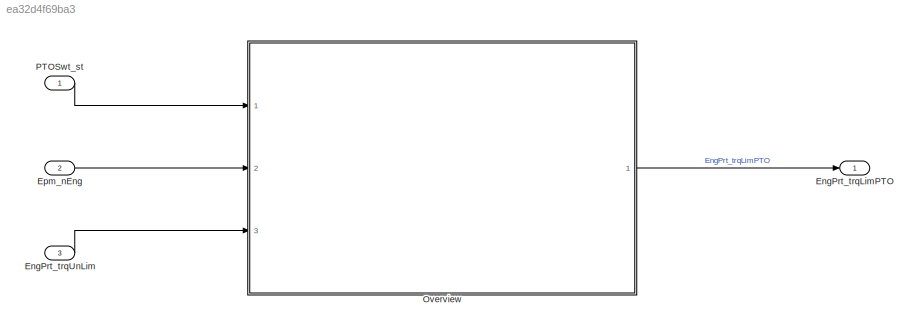
MODEL slx_ea32d4f69ba3
KIND model
CONFIG AbsTol = auto
CONFIG EnableMultiTasking = off
CONFIG FixedStep = 0.001
CONFIG MaxStep = auto
CONFIG MinStep = auto
CONFIG RelTol = 1e-3
CONFIG SampleTimeConstraint = Unconstrained
CONFIG Solver = FixedStepDiscrete
CONFIG SolverName = FixedStepDiscrete
CONFIG StartTime = 0.0
CONFIG StopTime = Inf
BLOCK [Outport] EngPrt_trqLimPTO
  IconDisplay = Port number
BLOCK [Inport] EngPrt_trqUnLim
  Description = Enabled torque from the maximum power manager
  IconDisplay = Port number
  OutDataTypeStr = Torq
  OutMax = 3276.7
  OutMin = -3276.8
  Port = 3
  PortDimensions = [1 1]
  Unit = Nm
BLOCK [Inport] Epm_nEng
  Description = Engine speed
  IconDisplay = Port number
  OutDataTypeStr = ERPM
  OutMax = 6000
  OutMin = 0
  Port = 2
  PortDimensions = [1 1]
  Unit = rpm
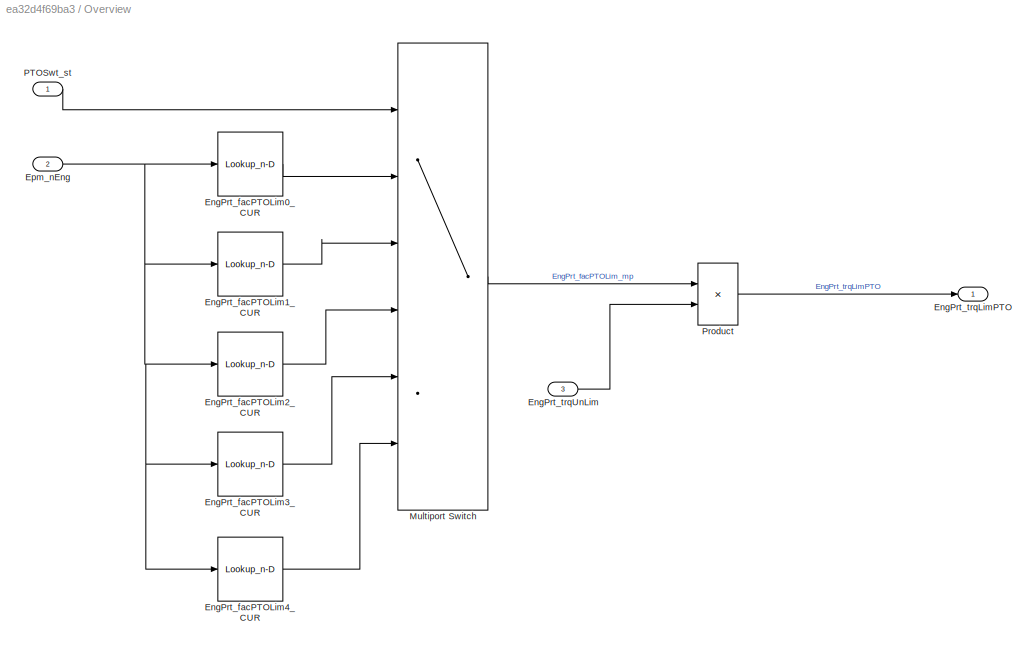
BLOCK [SubSystem] Overview
  Ports = [3, 1]
  RequestExecContextInheritance = off
BLOCK [Lookup_n-D] Overview/EngPrt_facPTOLim0_CUR
  BreakpointsForDimension1 = EngPrt_facPTOLim0_CURX
  BreakpointsForDimension1DataTypeStr = Inherit: Inherit from 'Breakpoint data'
  ExtrapMethod = Clip
  IndexSearchMethod = Linear search
  InputSameDT = off
  InternalRulePriority = Speed
  NumberOfTableDimensions = 1
  OutDataTypeStr = Inherit: Inherit from 'Table data'
  Ports = [1, 1]
  RndMeth = Simplest
  SaturateOnIntegerOverflow = on
  Table = EngPrt_facPTOLim0_CUR
  TableDataTypeStr = Inherit: Inherit from 'Table data'
BLOCK [Lookup_n-D] Overview/EngPrt_facPTOLim1_CUR
  BreakpointsForDimension1 = EngPrt_facPTOLim1_CURX
  BreakpointsForDimension1DataTypeStr = Inherit: Inherit from 'Breakpoint data'
  ExtrapMethod = Clip
  IndexSearchMethod = Linear search
  InputSameDT = off
  InternalRulePriority = Speed
  NumberOfTableDimensions = 1
  OutDataTypeStr = Inherit: Inherit from 'Table data'
  Ports = [1, 1]
  RndMeth = Simplest
  SaturateOnIntegerOverflow = on
  Table = EngPrt_facPTOLim1_CUR
  TableDataTypeStr = Inherit: Inherit from 'Table data'
BLOCK [Lookup_n-D] Overview/EngPrt_facPTOLim2_CUR
  BreakpointsForDimension1 = EngPrt_facPTOLim2_CURX
  ExtrapMethod = Clip
  IndexSearchMethod = Linear search
  InputSameDT = off
  InternalRulePriority = Speed
  NumberOfTableDimensions = 1
  OutDataTypeStr = Inherit: Inherit from 'Table data'
  Ports = [1, 1]
  RndMeth = Simplest
  SaturateOnIntegerOverflow = on
  Table = EngPrt_facPTOLim2_CUR
BLOCK [Lookup_n-D] Overview/EngPrt_facPTOLim3_CUR
  BreakpointsForDimension1 = EngPrt_facPTOLim3_CURX
  BreakpointsForDimension1DataTypeStr = Inherit: Inherit from 'Breakpoint data'
  ExtrapMethod = Clip
  IndexSearchMethod = Linear search
  InputSameDT = off
  InternalRulePriority = Speed
  NumberOfTableDimensions = 1
  OutDataTypeStr = Inherit: Inherit from 'Table data'
  Ports = [1, 1]
  RndMeth = Simplest
  SaturateOnIntegerOverflow = on
  Table = EngPrt_facPTOLim3_CUR
  TableDataTypeStr = Inherit: Inherit from 'Table data'
BLOCK [Lookup_n-D] Overview/EngPrt_facPTOLim4_CUR
  BreakpointsForDimension1 = EngPrt_facPTOLim4_CURX
  BreakpointsForDimension1DataTypeStr = Inherit: Inherit from 'Breakpoint data'
  ExtrapMethod = Clip
  IndexSearchMethod = Linear search
  InputSameDT = off
  InternalRulePriority = Speed
  NumberOfTableDimensions = 1
  OutDataTypeStr = Inherit: Inherit from 'Table data'
  Ports = [1, 1]
  RndMeth = Simplest
  SaturateOnIntegerOverflow = on
  Table = EngPrt_facPTOLim4_CUR
  TableDataTypeStr = Inherit: Inherit from 'Table data'
BLOCK [Outport] Overview/EngPrt_trqLimPTO
  IconDisplay = Port number
  Tag = Nm
BLOCK [Inport] Overview/EngPrt_trqUnLim
  IconDisplay = Port number
  Port = 3
  Tag = Nm
BLOCK [Inport] Overview/Epm_nEng
  IconDisplay = Port number
  Port = 2
  Tag = rpm
BLOCK [MultiPortSwitch] Overview/Multiport Switch
  DataPortOrder = Zero-based contiguous
  InputSameDT = off
  Inputs = 5
  OutDataTypeStr = Inherit: Inherit via back propagation
  Ports = [6, 1]
  SaturateOnIntegerOverflow = off
  zeroidx = on
BLOCK [Inport] Overview/PTOSwt_st
  IconDisplay = Port number
BLOCK [Product] Overview/Product
  InputSameDT = off
  OutDataTypeStr = Inherit: Inherit via back propagation
  Ports = [2, 1]
  RndMeth = Floor
  SaturateOnIntegerOverflow = off
BLOCK [Inport] PTOSwt_st
  Description = Power Take-off switch current state for a specific input voltage
  IconDisplay = Port number
  OutDataTypeStr = State
  OutMax = 255
  OutMin = 0
  PortDimensions = [1 1]
LINE EngPrt_trqUnLim:1 -> Overview:3
LINE Epm_nEng:1 -> Overview:2
LINE Overview/EngPrt_facPTOLim0_CUR:1 -> Overview/Multiport Switch:2
LINE Overview/EngPrt_facPTOLim1_CUR:1 -> Overview/Multiport Switch:3
LINE Overview/EngPrt_facPTOLim2_CUR:1 -> Overview/Multiport Switch:4
LINE Overview/EngPrt_facPTOLim3_CUR:1 -> Overview/Multiport Switch:5
LINE Overview/EngPrt_facPTOLim4_CUR:1 -> Overview/Multiport Switch:6
LINE Overview/EngPrt_trqUnLim:1 -> Overview/Product:2
NET Overview/Epm_nEng:1 -> Overview/EngPrt_facPTOLim0_CUR:1, Overview/EngPrt_facPTOLim1_CUR:1, Overview/EngPrt_facPTOLim2_CUR:1, Overview/EngPrt_facPTOLim3_CUR:1, Overview/EngPrt_facPTOLim4_CUR:1
LINE Overview/Multiport Switch:1 -> Overview/Product:1
LINE Overview/PTOSwt_st:1 -> Overview/Multiport Switch:1
LINE Overview/Product:1 -> Overview/EngPrt_trqLimPTO:1
LINE Overview:1 -> EngPrt_trqLimPTO:1
LINE PTOSwt_st:1 -> Overview:1
note: NET lines group one-source signal fan-out (src -> all destinations, sorted); 1:1 wires keep LINE
